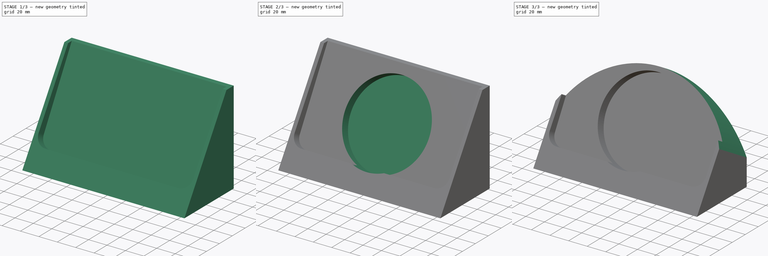
[diagram: build sequence overview — one tinted view per stage of 3, left to right]
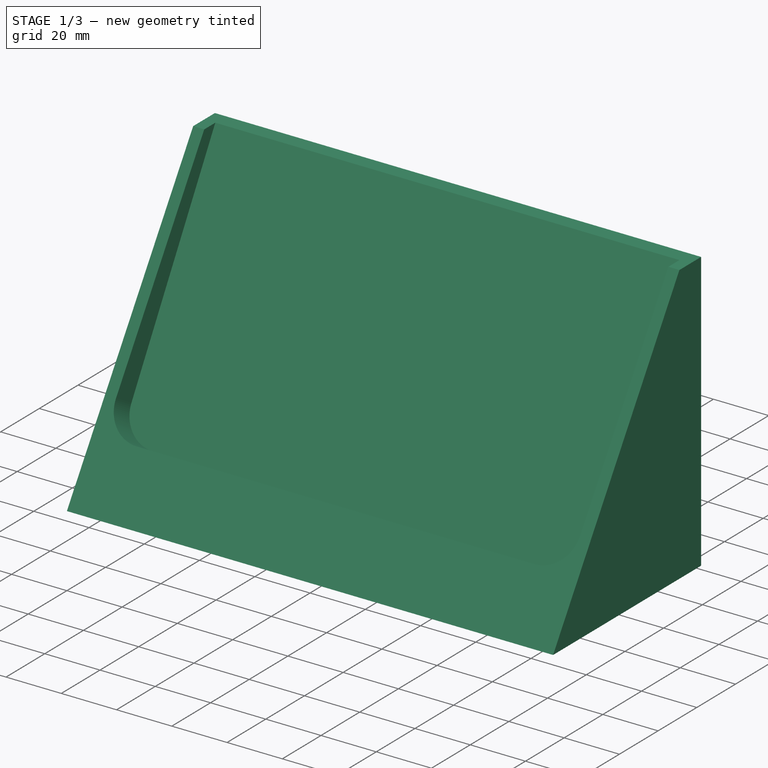
[diagram: stage 1 of 3 — iso view after this stage's code; geometry added in this stage tinted green]
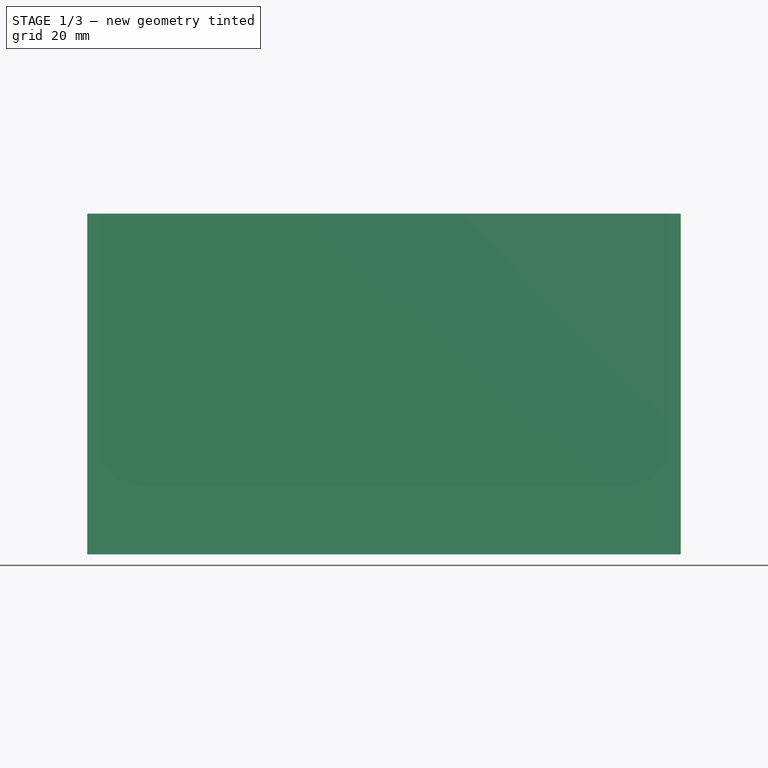
[diagram: stage 1 of 3 — front view after this stage's code; geometry added in this stage tinted green]
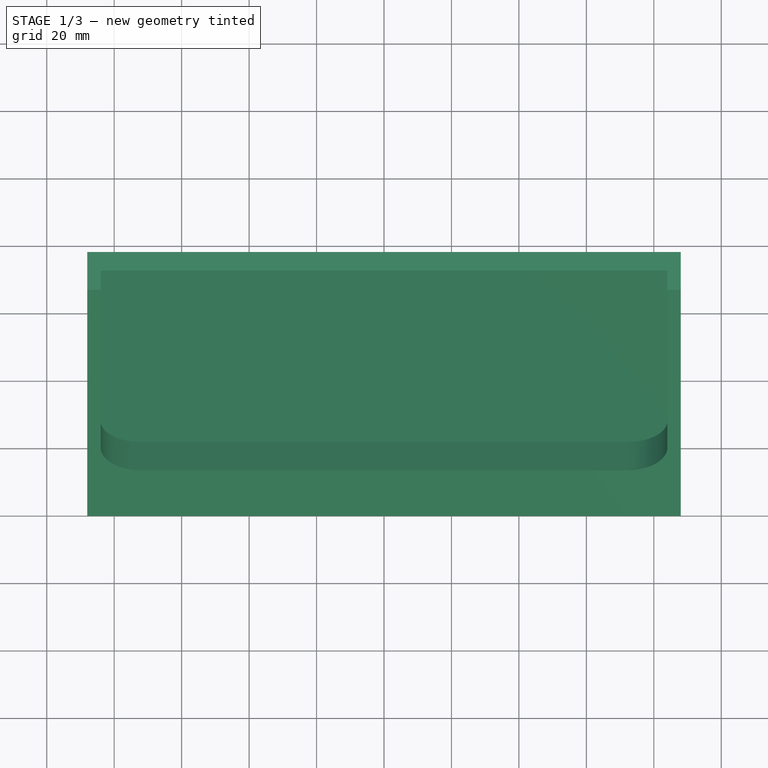
[diagram: stage 1 of 3 — top view after this stage's code; geometry added in this stage tinted green]
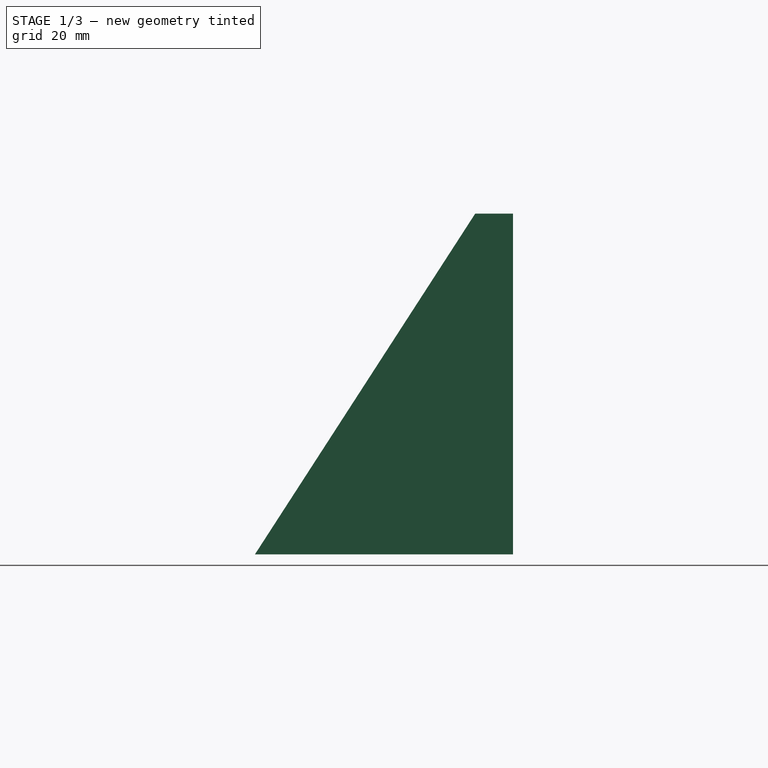
[diagram: stage 1 of 3 — right view after this stage's code; geometry added in this stage tinted green]
FCSTD DOCUMENT  (FreeCAD 1.1R38843 (Git))
Label: jennifer
License: All rights reserved
LicenseURL: http://en.wikipedia.org/wiki/All_rights_reserved
objects: Sketcher::SketchObject×8, PartDesign::Pocket×4, Spreadsheet::Sheet×1, PartDesign::Pad×1, PartDesign::Plane×1, PartDesign::Body×1
note: 33 computed .brp shape members not serialized (recipe doc carries the construction recipe); baked Part::Feature solids carry a one-line shape summary decoded from their .brp

FEATURE [Spreadsheet::Sheet] Spreadsheet  label="q"
  cells = A2='display angle; B2(display_angle)=60; A3='display chamfer; B3(display_chamfer)=3; A5='phone magsafe diameter; B5(phone_magsafe_diameter)=92; A6='phone magsafe thickness; B6(phone_magsafe_thickness)=9; A7='case margin; B7(case_margin)=3; C7='how much the back of the case potrudes; A9='phone width; B9(phone_width)=168; C9='in landscape mode; A10='phone height; B10(phone_height)=85; A11='phone thickness; B11(phone_thickness)=11; A13='charger bottom distance; B13(charger_bottom_distance)=8; A14='phone lip; B14(phone_lip)=8; A15='phone corner radius; B15(phone_corner_radius)=12; A17='stand width; B17(stand_width)==phone_width + stand_sidewall * 2; A18='stand height; B18(stand_height)==phone_height - 10; A19='stand sidewall; B19(stand_sidewall)=4; A21='usb connector width; B21(usb_connector_width)=14; A22='usb connector thickness; B22(usb_connector_thickness)=8; A23='usb bend; B23(usb_bend)=28
FEATURE [Sketcher::SketchObject] Sketch009  label="phone watch chargers001"
  ArcFitTolerance = 1e-06
  AttachmentSupport = -> [YZ_Plane001]
  FullyConstrained = true
  MakeInternals = false
  MapMode = 5
  Placement = pos=(0,0,0) rot=(0.57735,0.57735,0.57735;2.0944rad)
  expr: Constraints[18] = <<q>>.phone_magsafe_thickness
  expr: Constraints[19] = <<q>>.phone_magsafe_diameter
  expr: Constraints[23] = <<q>>.charger_bottom_distance
  expr: Constraints[7] = <<q>>.phone_height
  expr: Constraints[8] = <<q>>.phone_thickness
  expr: Constraints[9] = <<q>>.display_angle
  sketch-geometry (9):
    g0: LineSegment StartX=12.1423 StartY=21.0311 StartZ=0 EndX=54.6423 EndY=94.6432 EndZ=0
    g1: LineSegment StartX=54.6423 StartY=94.6432 StartZ=0 EndX=64.1686 EndY=89.1432 EndZ=0
    g2: LineSegment StartX=64.1686 StartY=89.1432 StartZ=0 EndX=21.6686 EndY=15.5311 EndZ=0
    g3: LineSegment StartX=21.6686 StartY=15.5311 StartZ=0 EndX=12.1423 EndY=21.0311 EndZ=0
    g4: GeomPoint [constr] X=42.9186 Y=52.3372 Z=0
    g5: LineSegment StartX=65.9186 StartY=92.1743 StartZ=0 EndX=19.9186 EndY=12.5 EndZ=0
    g6: LineSegment StartX=19.9186 StartY=12.5 StartZ=0 EndX=27.7128 EndY=8 EndZ=0
    g7: LineSegment StartX=27.7128 StartY=8 StartZ=0 EndX=73.7128 EndY=87.6743 EndZ=0
    g8: LineSegment StartX=73.7128 StartY=87.6743 StartZ=0 EndX=65.9186 EndY=92.1743 EndZ=0
  constraints (24):
    c: Coincident(g0,g1)
    c: Coincident(g1,g2)
    c: Coincident(g2,g3)
    c: Coincident(g3,g0)
    c: Perpendicular(g2,g3)
    c: Equal(g2,g0)
    c: Parallel(g2,g0)
    c: Distance(g2) = 85
    c: Distance(g3) = 11
    c: Angle(g-1,g2) = 1.0472
    c: PointOnObject(g-1,g0)
    c: Coincident(g5,g6)
    c: Coincident(g6,g7)
    c: Coincident(g7,g8)
    c: Coincident(g8,g5)
    c: Perpendicular(g6,g7)
    c: Perpendicular(g5,g6)
    c: Equal(g5,g7)
    c: Distance(g6) = 9
    c: Distance(g7) = 92
    c: Parallel(g5,g2)
    c: Symmetric(g2,g1,g4)
    c: Symmetric(g5,g5,g4)
    c: DistanceY(g-1,g6) = 8
FEATURE [Sketcher::SketchObject] Sketch
  ArcFitTolerance = 1e-06
  AttachmentSupport = -> [YZ_Plane001]
  ExternalGeometry = -> [Sketch009]
  FullyConstrained = false
  MakeInternals = false
  MapMode = 5
  Placement = pos=(0,0,0) rot=(0.57735,0.57735,0.57735;2.0944rad)
  sketch-geometry (5):
    g0: LineSegment StartX=0 StartY=0 StartZ=0 EndX=65.2925 EndY=101 EndZ=0
    g1: LineSegment StartX=65.2925 StartY=101 StartZ=0 EndX=76.5206 EndY=101 EndZ=0
    g2: LineSegment StartX=76.5206 StartY=101 StartZ=0 EndX=76.5206 EndY=0 EndZ=0
    g3: LineSegment StartX=76.5206 StartY=0 StartZ=0 EndX=0 EndY=0 EndZ=0
    g4: GeomPoint [constr] X=59.4054 Y=91.8932 Z=0
  constraints (10):
    c: Coincident(g-1,g0)
    c: Coincident(g0,g1)
    c: Horizontal(g1)
    c: Coincident(g1,g2)
    c: PointOnObject(g2,g-1)
    c: Vertical(g2)
    c: Coincident(g2,g3)
    c: Coincident(g3,g0)
    c: Symmetric(g-3,g-3,g4)
    c: PointOnObject(g4,g0)
FEATURE [PartDesign::Pad] Pad
  Direction = (1,0,0)
  Length = 176
  Length2 = 10
  Midplane = true
  Placement = pos=(0,0,0) rot=(1,1,1;2.0944rad)
  Profile = -> Sketch
  ReferenceAxis = -> Sketch [N_Axis]
  Suppressed = false
  Type = 0
  expr: Length = <<q>>.stand_width
FEATURE [PartDesign::Plane] DatumPlane
  AttachmentSupport = -> [Sketch009]
  Length = 209.114
  MapMode = 7
  Placement = pos=(0,54.6423,94.6432) rot=(1,0,0;1.0472rad)
  ResizeMode = 0
  Width = 188.87
FEATURE [Sketcher::SketchObject] Sketch010
  ArcFitTolerance = 1e-06
  AttachmentSupport = -> [DatumPlane]
  FullyConstrained = true
  MakeInternals = false
  MapMode = 5
  Placement = pos=(0,54.6423,94.6432) rot=(1,0,0;1.0472rad)
  expr: Constraints[11] = <<q>>.phone_height
  expr: Constraints[12] = <<q>>.phone_corner_radius
  expr: Constraints[16] = <<q>>.phone_height * 2
  expr: Constraints[18] = <<q>>.phone_width
  sketch-geometry (8):
    g0: LineSegment StartX=-84 StartY=85 StartZ=0 EndX=-84 EndY=-73 EndZ=0
    g1: LineSegment StartX=-72 StartY=-85 StartZ=0 EndX=72 EndY=-85 EndZ=0
    g2: LineSegment StartX=84 StartY=-73 StartZ=0 EndX=84 EndY=85 EndZ=0
    g3: ArcOfCircle CenterX=-72 CenterY=-73 CenterZ=0 NormalX=0 NormalY=0 NormalZ=1 AngleXU=0 Radius=12 StartAngle=3.14159 EndAngle=4.71239
    g4: GeomPoint [constr] X=-84 Y=-85 Z=0
    g5: ArcOfCircle CenterX=72 CenterY=-73 CenterZ=0 NormalX=0 NormalY=0 NormalZ=1 AngleXU=0 Radius=12 StartAngle=4.71239 EndAngle=6.28319
    g6: GeomPoint [constr] X=84 Y=-85 Z=0
    g7: LineSegment StartX=84 StartY=85 StartZ=0 EndX=-84 EndY=85 EndZ=0
  constraints (19):
    c: Vertical(g0)
    c: Vertical(g2)
    c: Horizontal(g1)
    c: PointOnObject(g4,g0)
    c: PointOnObject(g4,g1)
    c: Tangent(g0,g3) = -1.5708
    c: Tangent(g1,g3) = -1.5708
    c: PointOnObject(g6,g1)
    c: PointOnObject(g6,g2)
    c: Tangent(g1,g5) = -1.5708
    c: Tangent(g2,g5) = -1.5708
    c: DistanceY(g1,g-1) = 85
    c: Radius(g3) = 12
    c: Coincident(g7,g2)
    c: Coincident(g7,g0)
    c: Horizontal(g7)
    c: DistanceY(g1,g2) = 170
    c: Symmetric(g5,g3,g-2)
    c: DistanceX(g0,g2) = 168
FEATURE [PartDesign::Pocket] Pocket
  BaseFeature = -> Pad
  Direction = (0,0.866025,-0.5)
  Length = 11
  Length2 = 5
  Placement = pos=(0,0,0) rot=(1,1,1;2.0944rad)
  Profile = -> Sketch010
  ReferenceAxis = -> Sketch010 [N_Axis]
  Suppressed = false
  Type = 0
  expr: Length = <<q>>.phone_thickness
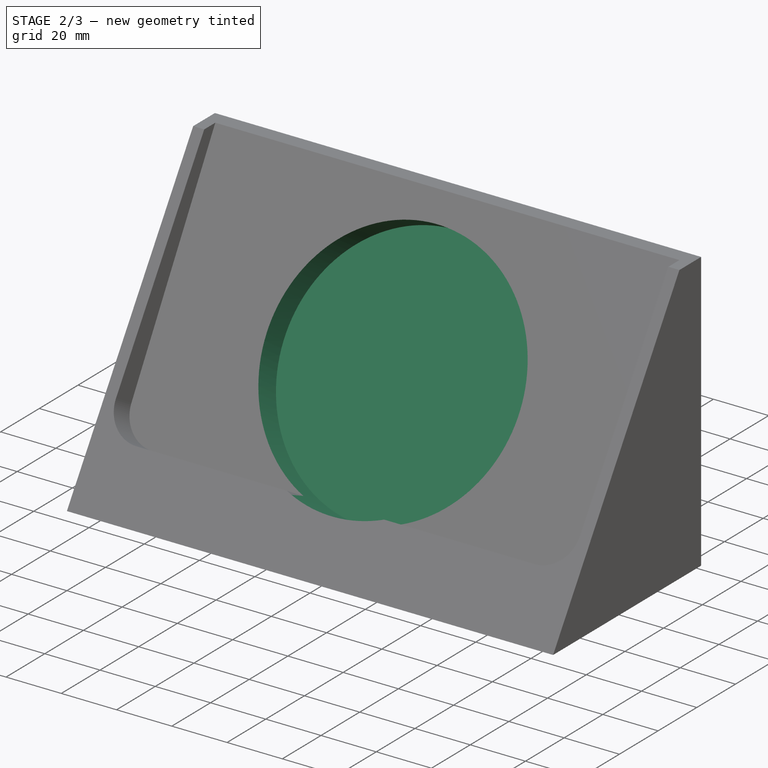
[diagram: stage 2 of 3 — iso view after this stage's code; geometry added in this stage tinted green]
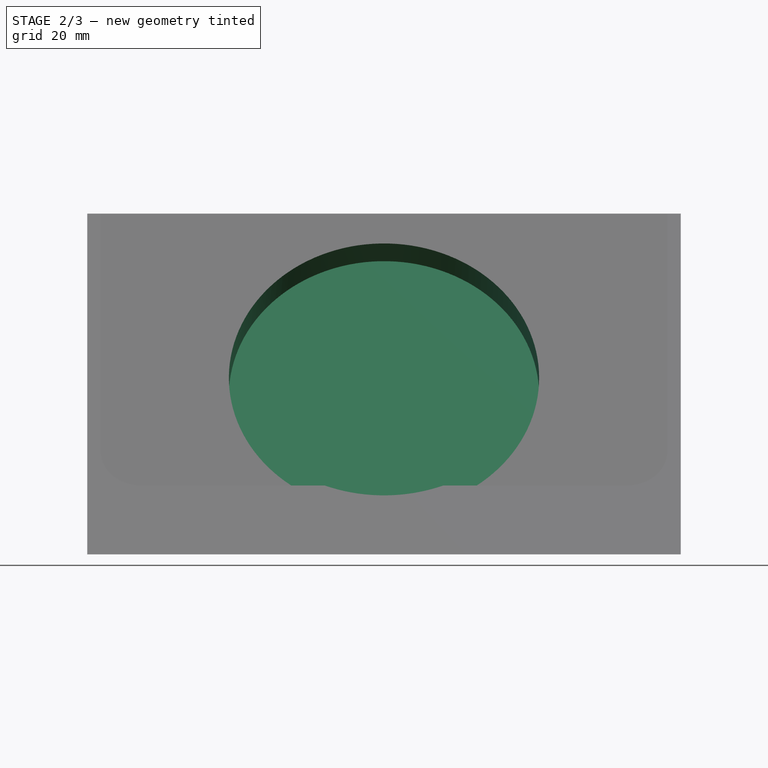
[diagram: stage 2 of 3 — front view after this stage's code; geometry added in this stage tinted green]
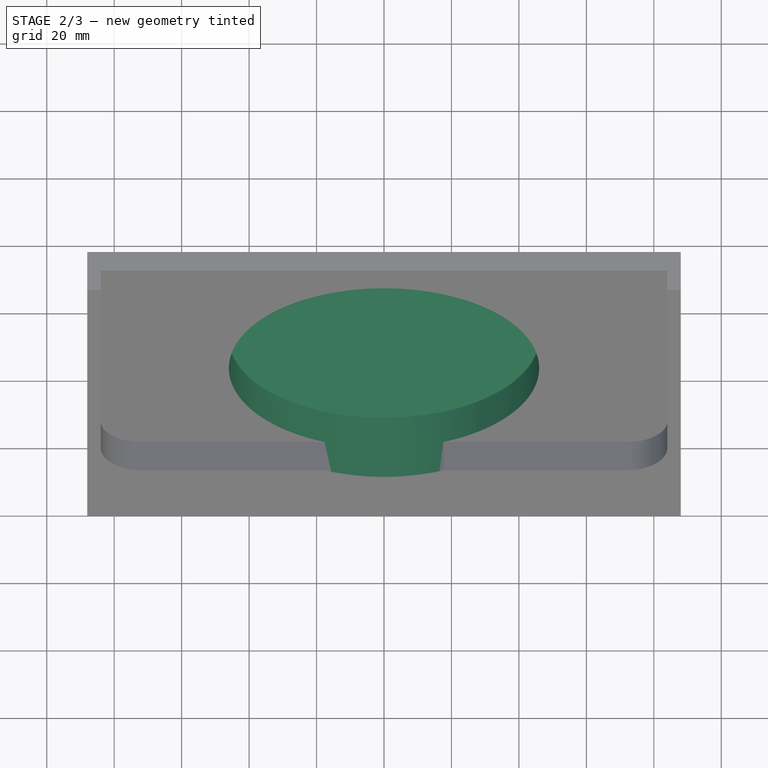
[diagram: stage 2 of 3 — top view after this stage's code; geometry added in this stage tinted green]
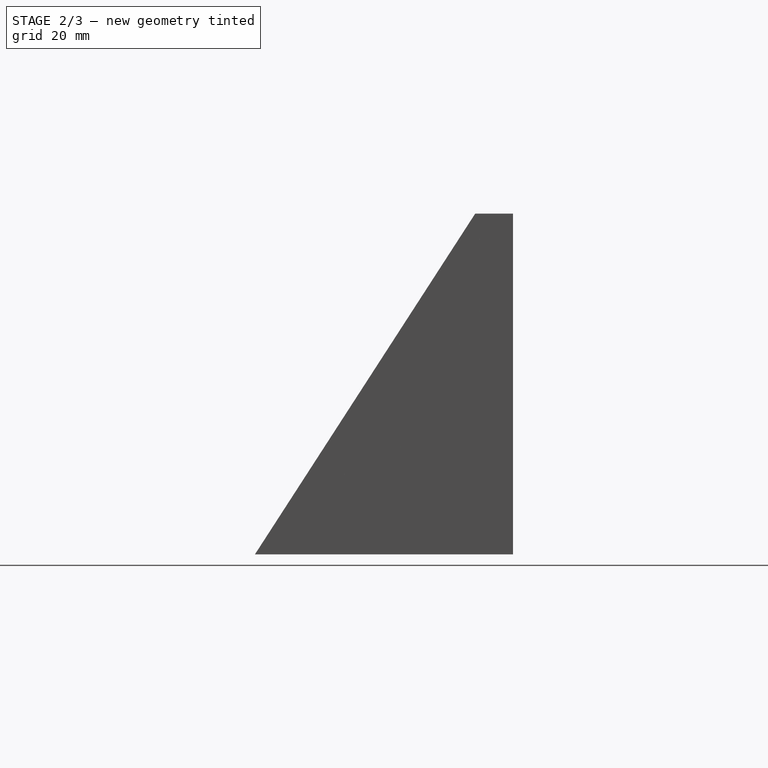
[diagram: stage 2 of 3 — right view after this stage's code; geometry added in this stage tinted green]
FEATURE [Sketcher::SketchObject] Sketch011
  ArcFitTolerance = 1e-06
  AttachmentOffset = pos=(0,0,0) rot=(0,0,1;1.5708rad)
  AttachmentSupport = -> [Pocket]
  ExternalGeometry = -> [Pocket]
  FullyConstrained = true
  MakeInternals = false
  MapMode = 5
  Placement = pos=(1.8e-15,9.52628,-5.5) rot=(1,0,0;1.0472rad)
  expr: Constraints[1] = <<q>>.phone_magsafe_diameter
  expr: Constraints[2] = <<q>>.phone_height / 2
  sketch-geometry (1):
    g0: Circle CenterX=0 CenterY=66.7846 CenterZ=0 NormalX=0 NormalY=0 NormalZ=1 AngleXU=0 Radius=46
  constraints (3):
    c: PointOnObject(g0,g-2)
    c: Diameter(g0) = 92
    c: DistanceY(g-3,g0) = 42.5
FEATURE [PartDesign::Pocket] Pocket001
  BaseFeature = -> Pocket
  Direction = (1e-16,0.866025,-0.5)
  Length = 21
  Length2 = 5
  Midplane = true
  Placement = pos=(0,0,0) rot=(1,1,1;2.0944rad)
  Profile = -> Sketch011
  ReferenceAxis = -> Sketch011 [N_Axis]
  Suppressed = false
  Type = 0
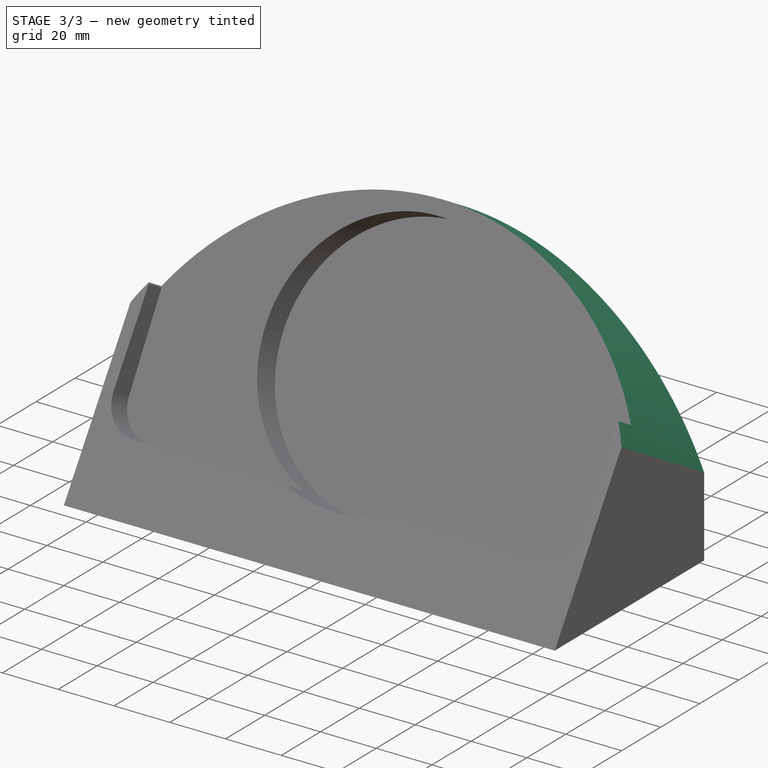
[diagram: stage 3 of 3 — iso view after this stage's code; geometry added in this stage tinted green]
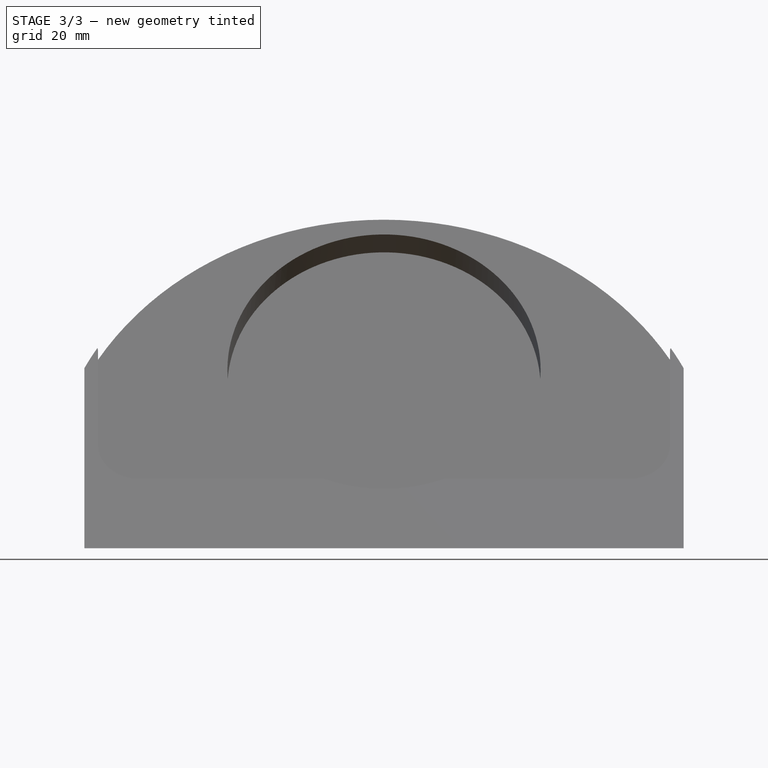
[diagram: stage 3 of 3 — front view after this stage's code; geometry added in this stage tinted green]
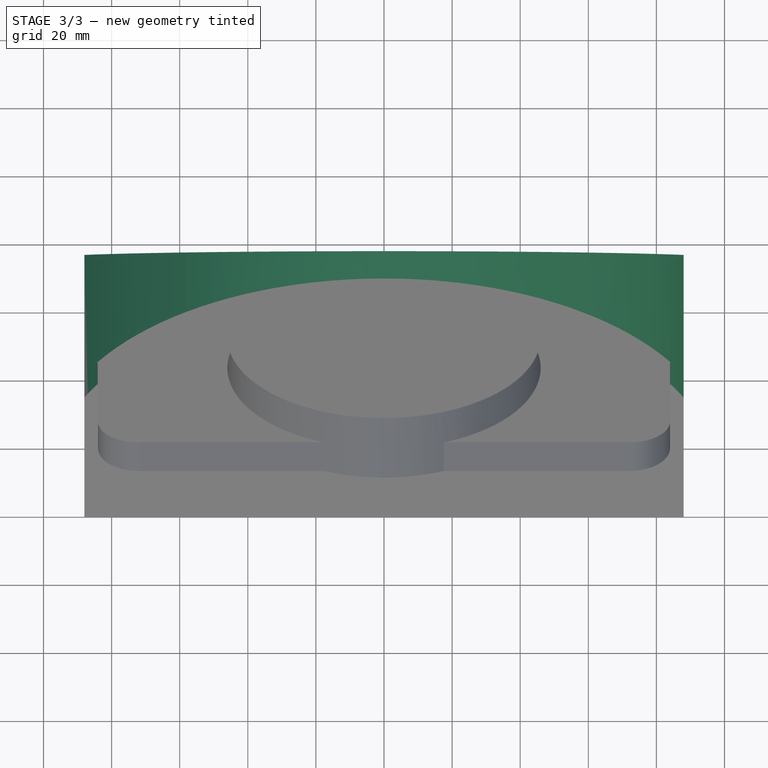
[diagram: stage 3 of 3 — top view after this stage's code; geometry added in this stage tinted green]
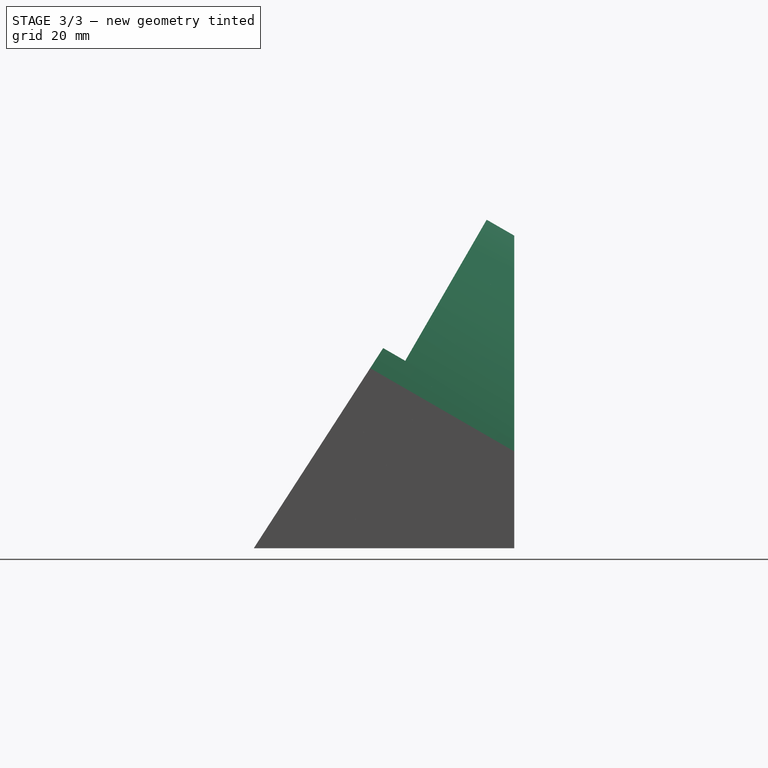
[diagram: stage 3 of 3 — right view after this stage's code; geometry added in this stage tinted green]
FEATURE [Sketcher::SketchObject] Sketch012
  ArcFitTolerance = 1e-06
  AttachmentOffset = pos=(0,0,11) rot=(0,0,1;1.5708rad)
  AttachmentSupport = -> [Pocket001]
  ExternalGeometry = -> [Pocket001]
  FullyConstrained = true
  MakeInternals = false
  MapMode = 5
  Placement = pos=(4e-15,1.439e-13,-8.26e-14) rot=(1,0,0;1.0472rad)
  expr: Constraints[3] = <<q>>.phone_magsafe_diameter / 2 + 5
  sketch-geometry (5):
    g0: ArcOfCircle CenterX=-5.49e-14 CenterY=19.7846 CenterZ=0 NormalX=0 NormalY=0 NormalZ=1 AngleXU=0 Radius=98 StartAngle=0.0459345 EndAngle=3.09566
    g1: GeomPoint [constr] X=0 Y=117.785 Z=0
    g2: LineSegment StartX=97.8966 StartY=24.2846 StartZ=0 EndX=97.8966 EndY=154.285 EndZ=0
    g3: LineSegment StartX=97.8966 StartY=154.285 StartZ=0 EndX=-97.8966 EndY=154.285 EndZ=0
    g4: LineSegment StartX=-97.8966 StartY=154.285 StartZ=0 EndX=-97.8966 EndY=24.2846 EndZ=0
  constraints (14):
    c: Horizontal(g-3,g0)
    c: PointOnObject(g1,g0)
    c: PointOnObject(g1,g-2)
    c: DistanceY(g-3,g1) = 51
    c: Symmetric(g0,g0,g-2)
    c: Radius(g0) = 98
    c: Coincident(g0,g2)
    c: Coincident(g2,g3)
    c: Horizontal(g3)
    c: Coincident(g3,g4)
    c: Coincident(g4,g0)
    c: Vertical(g4)
    c: DistanceY(g2,g2) = 130
    c: Vertical(g2)
FEATURE [PartDesign::Pocket] Pocket002
  BaseFeature = -> Pocket001
  Direction = (-1e-16,0.866025,-0.5)
  Length = 5
  Length2 = 5
  Placement = pos=(0,0,0) rot=(1,1,1;2.0944rad)
  Profile = -> Sketch012
  ReferenceAxis = -> Sketch012 [N_Axis]
  Suppressed = false
  Type = 1
FEATURE [Sketcher::SketchObject] Sketch013
  ArcFitTolerance = 1e-06
  AttachmentOffset = pos=(0,0,-1) rot=(0,0,1;1.5708rad)
  AttachmentSupport = -> [Pocket002]
  ExternalGeometry = -> [Pocket002,Sketch009]
  FullyConstrained = false
  MakeInternals = false
  MapMode = 5
  Placement = pos=(5.4e-15,10.3923,-6) rot=(1,0,0;1.0472rad)
  sketch-geometry (5):
    g0: LineSegment [constr] StartX=-3.16e-14 StartY=66.7846 StartZ=0 EndX=38.2121 EndY=41.1753 EndZ=0
    g1: ArcOfCircle CenterX=67.5622 CenterY=21.5052 CenterZ=0 NormalX=0 NormalY=0 NormalZ=1 AngleXU=0 Radius=9 StartAngle=4.12195 EndAngle=7.26355
    g2: ArcOfCircle CenterX=26.5823 CenterY=48.9695 CenterZ=0 NormalX=0 NormalY=0 NormalZ=1 AngleXU=0 Radius=9 StartAngle=0.98036 EndAngle=4.12195
    g3: LineSegment StartX=62.5517 StartY=14.029 StartZ=0 EndX=21.5718 EndY=41.4932 EndZ=0
    g4: LineSegment StartX=72.5727 StartY=28.9815 StartZ=0 EndX=31.5928 EndY=56.4457 EndZ=0
  constraints (11):
    c: Coincident(g0,g-3)
    c: PointOnObject(g0,g-3)
    c: Tangent(g1,g3) = 1.5708
    c: Tangent(g1,g4) = -1.5708
    c: Tangent(g2,g3) = 1.5708
    c: Tangent(g2,g4) = -1.5708
    c: Equal(g1,g2)
    c: Radius(g1) = 9
    c: PointOnObject(g2,g0)
    c: Parallel(g0,g4)
    c: Distance(g2,g0) = 14
FEATURE [Sketcher::SketchObject] Sketch016
  ArcFitTolerance = 1e-06
  AttachmentOffset = pos=(0,0,0) rot=(0,0,1;1.5708rad)
  AttachmentSupport = -> [Pocket002]
  ExternalGeometry = -> [Pocket002]
  FullyConstrained = false
  MakeInternals = false
  MapMode = 5
  Placement = pos=(5.5e-15,9.52628,-5.5) rot=(1,0,0;1.0472rad)
  sketch-geometry (8):
    g0: ArcOfCircle CenterX=86 CenterY=69.0708 CenterZ=0 NormalX=0 NormalY=0 NormalZ=1 AngleXU=0 Radius=2 StartAngle=3.9e-15 EndAngle=3.14159
    g1: ArcOfCircle CenterX=-86 CenterY=69.0708 CenterZ=0 NormalX=0 NormalY=0 NormalZ=1 AngleXU=0 Radius=2 StartAngle=0 EndAngle=3.14159
    g2: LineSegment StartX=-84 StartY=69.0708 StartZ=0 EndX=-84 EndY=85.0708 EndZ=0
    g3: LineSegment StartX=-84 StartY=85.0708 StartZ=0 EndX=-88 EndY=85.0708 EndZ=0
    g4: LineSegment StartX=-88 StartY=85.0708 StartZ=0 EndX=-88 EndY=69.0708 EndZ=0
    g5: LineSegment StartX=88 StartY=69.0708 StartZ=0 EndX=88 EndY=84.0708 EndZ=0
    g6: LineSegment StartX=88 StartY=84.0708 StartZ=0 EndX=84 EndY=84.0708 EndZ=0
    g7: LineSegment StartX=84 StartY=84.0708 StartZ=0 EndX=84 EndY=69.0708 EndZ=0
  constraints (24):
    c: PointOnObject(g0,g-5)
    c: Horizontal(g0,g0)
    c: Tangent(g0,g-6) = -1.5708
    c: PointOnObject(g1,g-3)
    c: PointOnObject(g1,g-4)
    c: Horizontal(g1,g0)
    c: Horizontal(g1,g1)
    c: Horizontal(g1,g1)
    c: Coincident(g1,g2)
    c: Coincident(g2,g3)
    c: Horizontal(g3)
    c: Coincident(g3,g4)
    c: Coincident(g4,g1)
    c: Vertical(g2)
    c: Vertical(g4)
    c: DistanceY(g2,g2) = 16
    c: Coincident(g0,g5)
    c: Coincident(g5,g6)
    c: Coincident(g6,g7)
    c: Coincident(g7,g0)
    c: Vertical(g5)
    c: Vertical(g7)
    c: Horizontal(g6)
    c: DistanceY(g5,g5) = 15
FEATURE [PartDesign::Pocket] Pocket003
  BaseFeature = -> Pocket002
  Direction = (-1e-16,0.866025,-0.5)
  Length = 10
  Length2 = 5
  Placement = pos=(0,0,0) rot=(1,1,1;2.0944rad)
  Profile = -> Sketch016
  ReferenceAxis = -> Sketch016 [N_Axis]
  Reversed = true
  Suppressed = false
  Type = 0
FEATURE [Sketcher::SketchObject] Sketch017
  ArcFitTolerance = 1e-06
  AttachmentSupport = -> [Pocket003]
  FullyConstrained = false
  MakeInternals = false
  MapMode = 5
  Placement = pos=(1.7e-14,76.5206,-1.104e-13) rot=(0.57735,0.57735,0.57735;4.18879rad)
  sketch-geometry (4):
    g0: ArcOfCircle CenterX=33.3745 CenterY=23.2889 CenterZ=0 NormalX=0 NormalY=0 NormalZ=1 AngleXU=0 Radius=4 StartAngle=1.5708 EndAngle=4.71239
    g1: ArcOfCircle CenterX=39.3745 CenterY=23.2889 CenterZ=0 NormalX=0 NormalY=0 NormalZ=1 AngleXU=0 Radius=4 StartAngle=4.71239 EndAngle=7.85398
    g2: LineSegment StartX=33.3745 StartY=27.2889 StartZ=0 EndX=39.3745 EndY=27.2889 EndZ=0
    g3: LineSegment StartX=33.3745 StartY=19.2889 StartZ=0 EndX=39.3745 EndY=19.2889 EndZ=0
  constraints (8):
    c: Tangent(g0,g2) = 1.5708
    c: Tangent(g0,g3) = -1.5708
    c: Tangent(g1,g2) = 1.5708
    c: Tangent(g1,g3) = -1.5708
    c: Equal(g0,g1)
    c: Horizontal(g3)
    c: Distance(g0,g1) = 6
    c: Radius(g0) = 4
FEATURE [PartDesign::Body] Body001
  AllowCompound = false
  Group = -> [Sketch009,Sketch,Pad,DatumPlane,Sketch010,Pocket,Sketch011,Pocket001,Sketch012,Pocket002,Sketch013,Sketch016,Pocket003,Sketch017]
  Origin = -> Origin001
  Tip = -> Pocket003
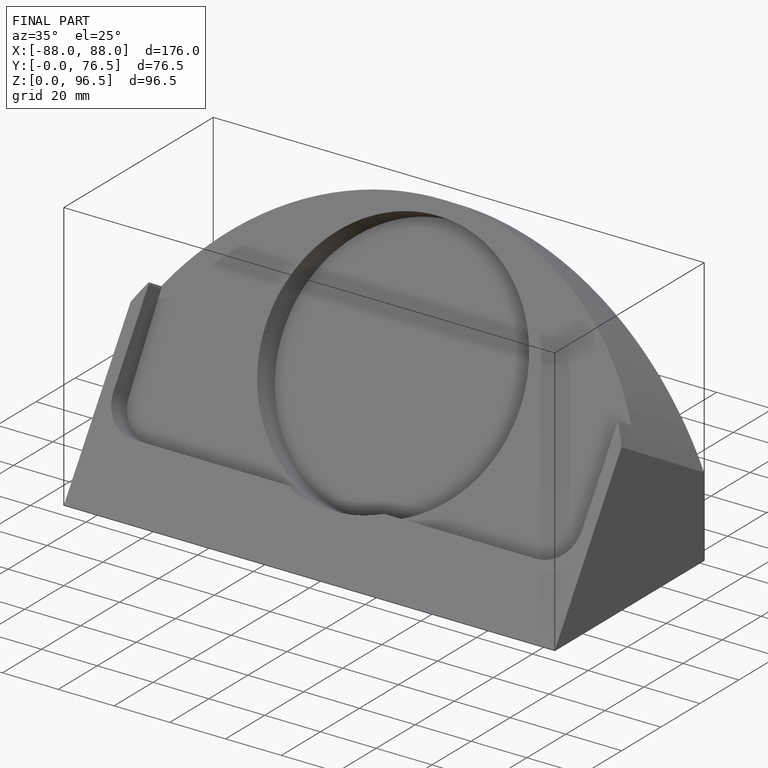
[diagram: finished part — iso view with bounding-box wireframe]
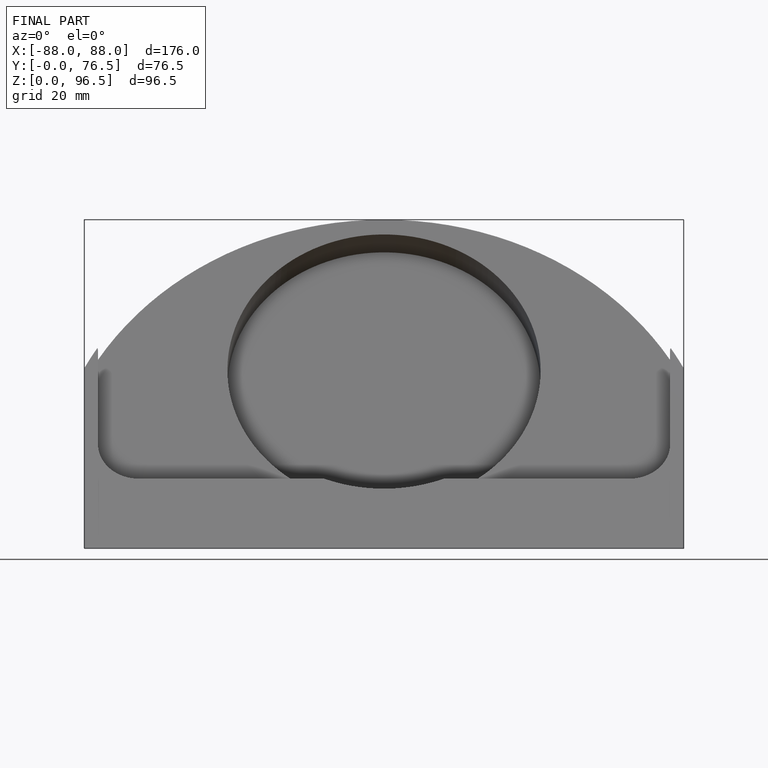
[diagram: finished part — front view with bounding-box wireframe]
